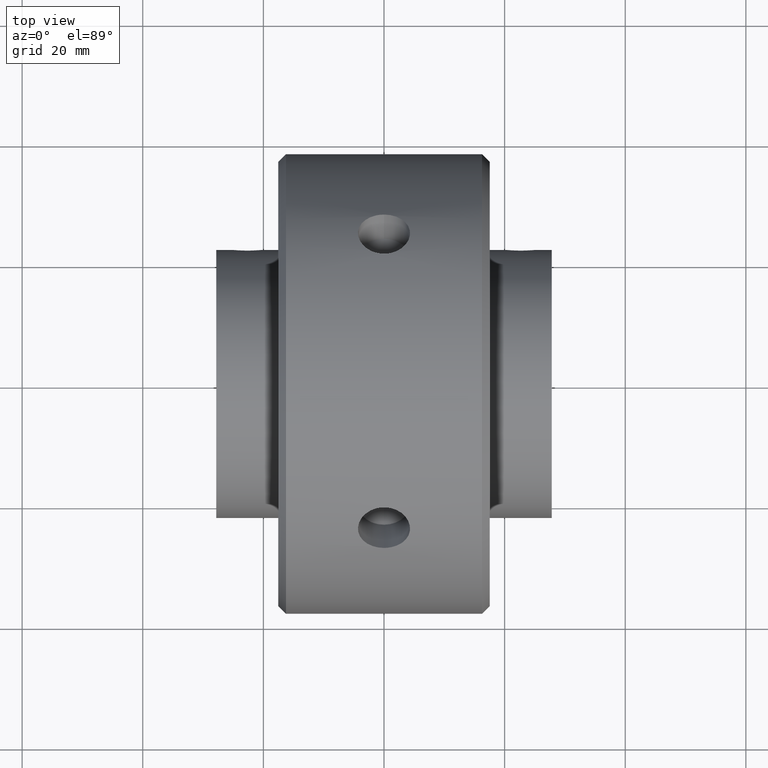
[diagram: clean part render]
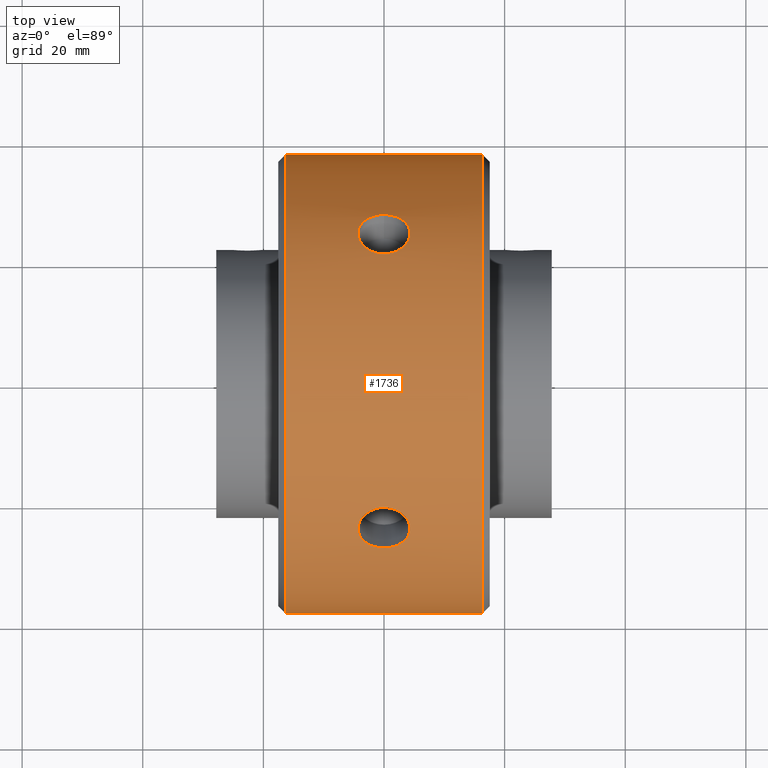
[diagram: same view with one face highlighted and labeled with its STEP entity id]
A machine part, top view. The second image highlights one B-rep face of the part: STEP entity #1736.
In plain terms, the highlighted cylindrical surface (partial cylindrical patch) has radius 38.1 mm, axis along (-1, -0, -0).
Its self-contained STEP definition (entity closure, byte-faithful):
#294 = B_SPLINE_CURVE_WITH_KNOTS ( 'NONE', 3,
 ( #4138, #4134, #4140, #4141, #4142, #4143, #4144, #4145, #4146, #4147, #4148, #4149, #4150, #4151, #4152, #4153, #4154, #4155, #4156, #4157, #4158, #4159, #4160, #4161, #4162, #4163, #4164, #4165, #4166, #4167, #4168, #4169, #4170, #4171 ),
 .UNSPECIFIED., .F., .F.,
 ( 4, 2, 2, 2, 2, 2, 2, 2, 2, 2, 2, 2, 2, 2, 2, 2, 4 ),
 ( 5.705653964717218900E-020, 0.0008444300378255129800, 0.001688860075651025700, 0.002533290113476538600, 0.003377720151302051500, 0.004222150189127564300, 0.005066580226953077200, 0.005911010264778590100, 0.006755440302604102900, 0.007599870340429615800, 0.008444300378255128700, 0.009288730416080642400, 0.01013316045390615600, 0.01097759049173167200, 0.01182202052955718700, 0.01266645056738269900, 0.01351088060520821500 ),
 .UNSPECIFIED. ) ;
#297 = B_SPLINE_CURVE_WITH_KNOTS ( 'NONE', 3,
 ( #4300, #4298, #4297, #4295, #4294, #4293, #4292, #4291, #4289, #4287, #4286, #4285, #4284, #4282, #4281, #4280, #4279, #4277, #4275, #4274, #4273, #4271, #4270, #4269, #4267, #4266, #4265, #4264, #4263, #4262, #4261, #4260, #4259, #4258 ),
 .UNSPECIFIED., .F., .F.,
 ( 4, 2, 2, 2, 2, 2, 2, 2, 2, 2, 2, 2, 2, 2, 2, 2, 4 ),
 ( 1.511320389129148700E-018, 0.0008444300378255147100, 0.001688860075651027500, 0.002533290113476539900, 0.003377720151302052800, 0.004222150189127566100, 0.005066580226953078900, 0.005911010264778592700, 0.006755440302604105500, 0.007599870340429618400, 0.008444300378255132100, 0.009288730416080644100, 0.01013316045390615800, 0.01097759049173167200, 0.01182202052955718500, 0.01266645056738269700, 0.01351088060520820900 ),
 .UNSPECIFIED. ) ;
#320 = B_SPLINE_CURVE_WITH_KNOTS ( 'NONE', 3,
 ( #673, #435, #427, #424, #423, #422, #413, #409, #408, #406, #402, #399, #392, #391, #380, #379, #371, #353, #341, #340, #338, #334, #333, #770, #846, #845, #810, #827, #839, #375, #357, #370, #358, #356 ),
 .UNSPECIFIED., .F., .F.,
 ( 4, 2, 2, 2, 2, 2, 2, 2, 2, 2, 2, 2, 2, 2, 2, 2, 4 ),
 ( 0.01351088060520821500, 0.01435511040321369200, 0.01519934020121916800, 0.01604356999922464500, 0.01688779979723012400, 0.01773202959523560000, 0.01857625939324107600, 0.01942048919124655600, 0.02026471898925203200, 0.02110894878725750800, 0.02195317858526298800, 0.02279740838326846400, 0.02364163818127394000, 0.02448586797927941600, 0.02533009777728488900, 0.02617432757529036100, 0.02701855737329583700 ),
 .UNSPECIFIED. ) ;
#323 = B_SPLINE_CURVE_WITH_KNOTS ( 'NONE', 3,
 ( #651, #738, #773, #742, #780, #764, #581, #582, #593, #597, #602, #603, #610, #613, #614, #615, #617, #622, #624, #627, #628, #634, #569, #560, #540, #533, #531, #527, #515, #505, #496, #492, #521, #490 ),
 .UNSPECIFIED., .F., .F.,
 ( 4, 2, 2, 2, 2, 2, 2, 2, 2, 2, 2, 2, 2, 2, 2, 2, 4 ),
 ( 0.01351088060520820900, 0.01435511040321368200, 0.01519934020121915600, 0.01604356999922462700, 0.01688779979723010300, 0.01773202959523557900, 0.01857625939324105900, 0.01942048919124653500, 0.02026471898925201100, 0.02110894878725749100, 0.02195317858526296700, 0.02279740838326844300, 0.02364163818127391900, 0.02448586797927939500, 0.02533009777728487100, 0.02617432757529034700, 0.02701855737329582300 ),
 .UNSPECIFIED. ) ;
#333 = CARTESIAN_POINT ( 'NONE',  ( 0.1476067216867924200, 0.8974868172911492100, 1.201916439141598000 ) ) ;
#334 = CARTESIAN_POINT ( 'NONE',  ( 0.1528212273994534200, 0.9053069113668121800, 1.196045809191008900 ) ) ;
#338 = CARTESIAN_POINT ( 'NONE',  ( 0.1613415699801709300, 0.9216534678059389300, 1.183495275332005800 ) ) ;
#340 = CARTESIAN_POINT ( 'NONE',  ( 0.1646052481293322800, 0.9301581724872268800, 1.176827934136172000 ) ) ;
#341 = CARTESIAN_POINT ( 'NONE',  ( 0.1689123109188117600, 0.9471197078634897600, 1.163220732012873300 ) ) ;
#353 = CARTESIAN_POINT ( 'NONE',  ( 0.1700082735530961100, 0.9556706450731863300, 1.156209272230627900 ) ) ;
#355 = DIRECTION ( 'NONE',  ( -1.000000000000000000, -1.224646799147353200E-016, -0.0000000000000000000 ) ) ;
#356 = CARTESIAN_POINT ( 'NONE',  ( -1.243724300761957700E-016, 0.8277416593588534700, 1.250937146847055600 ) ) ;
#357 = CARTESIAN_POINT ( 'NONE',  ( 0.04433006185405405400, 0.8323521704360437000, 1.247876097742317300 ) ) ;
#358 = CARTESIAN_POINT ( 'NONE',  ( 0.01123935745672645000, 0.8277416593588534700, 1.250937146847055400 ) ) ;
#363 = CARTESIAN_POINT ( 'NONE',  ( -1.094999999999999800, -1.500000000000000200, 0.0000000000000000000 ) ) ;
#370 = CARTESIAN_POINT ( 'NONE',  ( 0.02235268887295561300, 0.8286689086551207700, 1.250325050046792800 ) ) ;
#371 = CARTESIAN_POINT ( 'NONE',  ( 0.1699916332427355000, 0.9728850300461493500, 1.141762226279526800 ) ) ;
#375 = CARTESIAN_POINT ( 'NONE',  ( 0.05503231937393291600, 0.8350930202824602400, 1.246048915120760300 ) ) ;
#379 = CARTESIAN_POINT ( 'NONE',  ( 0.1688803392431026100, 0.9812659551701992100, 1.134563900437338000 ) ) ;
#380 = CARTESIAN_POINT ( 'NONE',  ( 0.1645428440192832900, 0.9976030418631681700, 1.120225999438070600 ) ) ;
#391 = CARTESIAN_POINT ( 'NONE',  ( 0.1612632085676381500, 1.005642738819523700, 1.113008850941448600 ) ) ;
#392 = CARTESIAN_POINT ( 'NONE',  ( 0.1527152563813462000, 1.020827558993616700, 1.099098319175119100 ) ) ;
#399 = CARTESIAN_POINT ( 'NONE',  ( 0.1474882610413314200, 1.027959046131840000, 1.092421946412238000 ) ) ;
#402 = CARTESIAN_POINT ( 'NONE',  ( 0.1351460985212975300, 1.041349436308403900, 1.079665161532757700 ) ) ;
#406 = CARTESIAN_POINT ( 'NONE',  ( 0.1279665656758276500, 1.047630638470060000, 1.073560313116070700 ) ) ;
#408 = CARTESIAN_POINT ( 'NONE',  ( 0.1122858667771305400, 1.058816587041419000, 1.062529592794959200 ) ) ;
#409 = CARTESIAN_POINT ( 'NONE',  ( 0.1037305745992962400, 1.063797170240365200, 1.057532244388617000 ) ) ;
#413 = CARTESIAN_POINT ( 'NONE',  ( 0.08515110155744039200, 1.072550991801668500, 1.048653058603412000 ) ) ;
#422 = CARTESIAN_POINT ( 'NONE',  ( 0.07526253154982991100, 1.076244887863493100, 1.044851702155675800 ) ) ;
#423 = CARTESIAN_POINT ( 'NONE',  ( 0.05480325736628589200, 1.082160700342706700, 1.038723426511454400 ) ) ;
#424 = CARTESIAN_POINT ( 'NONE',  ( 0.04407591128160625500, 1.084428103103567900, 1.036349599973919200 ) ) ;
#427 = CARTESIAN_POINT ( 'NONE',  ( 0.02213202630165997700, 1.087452150440518800, 1.033175989204741400 ) ) ;
#435 = CARTESIAN_POINT ( 'NONE',  ( 0.01109688509565855000, 1.088196770019304000, 1.032389359553630400 ) ) ;
#460 = DIRECTION ( 'NONE',  ( -1.000000000000000000, -1.224646799147353200E-016, -0.0000000000000000000 ) ) ;
#488 = CARTESIAN_POINT ( 'NONE',  ( -1.095000000000000000, 1.500000000000000200, 1.836970198721030200E-016 ) ) ;
#490 = CARTESIAN_POINT ( 'NONE',  ( 1.577053196130699700E-016, -1.088196770019288700, 1.032389359553645500 ) ) ;
#492 = CARTESIAN_POINT ( 'NONE',  ( 0.02235268887295591800, -1.087432957194256500, 1.033196232355664000 ) ) ;
#496 = CARTESIAN_POINT ( 'NONE',  ( 0.04433006185405437300, -1.084381618281923900, 1.036398281009024000 ) ) ;
#505 = CARTESIAN_POINT ( 'NONE',  ( 0.05503231937393324200, -1.082106251088957200, 1.038780204255120400 ) ) ;
#515 = CARTESIAN_POINT ( 'NONE',  ( 0.07547427048312969900, -1.076171622441151900, 1.044927217776666400 ) ) ;
#521 = CARTESIAN_POINT ( 'NONE',  ( 0.01123935745672669700, -1.088196770019288900, 1.032389359553646000 ) ) ;
#527 = CARTESIAN_POINT ( 'NONE',  ( 0.08535137148608908100, -1.072469812729506300, 1.048736163200477500 ) ) ;
#531 = CARTESIAN_POINT ( 'NONE',  ( 0.1039169857258415600, -1.063695885146095600, 1.057634201008923900 ) ) ;
#533 = CARTESIAN_POINT ( 'NONE',  ( 0.1124624967062962500, -1.058706306806115300, 1.062639546908968700 ) ) ;
#540 = CARTESIAN_POINT ( 'NONE',  ( 0.1281194297771001700, -1.047505537473169900, 1.073682448254132500 ) ) ;
#560 = CARTESIAN_POINT ( 'NONE',  ( 0.1352863276384842200, -1.041217711826497800, 1.079792290428583000 ) ) ;
#569 = CARTESIAN_POINT ( 'NONE',  ( 0.1476067216867927900, -1.027809677436773300, 1.092562575259435900 ) ) ;
#581 = CARTESIAN_POINT ( 'NONE',  ( 0.08515110155744068400, -0.8464751371513911100, 1.238353224858548500 ) ) ;
#582 = CARTESIAN_POINT ( 'NONE',  ( 0.1037305745992964700, -0.8567395133148385500, 1.231274247947259400 ) ) ;
#593 = CARTESIAN_POINT ( 'NONE',  ( 0.1122858667771307600, -0.8625258099661227100, 1.227237111442342400 ) ) ;
#597 = CARTESIAN_POINT ( 'NONE',  ( 0.1279665656758279300, -0.8753313684445559500, 1.218136567046587300 ) ) ;
#602 = CARTESIAN_POINT ( 'NONE',  ( 0.1351460985212978300, -0.8824341898052021600, 1.213010886262041000 ) ) ;
#603 = CARTESIAN_POINT ( 'NONE',  ( 0.1474882610413317000, -0.8973223873104329000, 1.202039118647513400 ) ) ;
#610 = CARTESIAN_POINT ( 'NONE',  ( 0.1527152563813463400, -0.9051357007149248800, 1.196175314786983100 ) ) ;
#613 = CARTESIAN_POINT ( 'NONE',  ( 0.1612632085676382900, -0.9214717165983601400, 1.183636724643041500 ) ) ;
#614 = CARTESIAN_POINT ( 'NONE',  ( 0.1645428440192834300, -0.9299752991179390800, 1.176972413432943800 ) ) ;
#615 = CARTESIAN_POINT ( 'NONE',  ( 0.1688803392431028100, -0.9469322805165604200, 1.163373274176167500 ) ) ;
#617 = CARTESIAN_POINT ( 'NONE',  ( 0.1699916332427356700, -0.9554765799896103300, 1.156369650301337200 ) ) ;
#622 = CARTESIAN_POINT ( 'NONE',  ( 0.1700082735530964500, -0.9726933894305900300, 1.141925493718705600 ) ) ;
#624 = CARTESIAN_POINT ( 'NONE',  ( 0.1689123109188119800, -0.9810831840478865300, 1.134721991673047100 ) ) ;
#627 = CARTESIAN_POINT ( 'NONE',  ( 0.1646052481293325800, -0.9974290019042360000, 1.120381005983368500 ) ) ;
#628 = CARTESIAN_POINT ( 'NONE',  ( 0.1613415699801711800, -1.005471877675372600, 1.113163278524697400 ) ) ;
#634 = CARTESIAN_POINT ( 'NONE',  ( 0.1528212273994537000, -1.020670290460944800, 1.099244440341756900 ) ) ;
#651 = CARTESIAN_POINT ( 'NONE',  ( 1.349146648968905600E-016, -0.8277416593588351500, 1.250937146847067600 ) ) ;
#673 = CARTESIAN_POINT ( 'NONE',  ( -1.012416717233698200E-016, 1.088196770019304000, 1.032389359553630200 ) ) ;
#738 = CARTESIAN_POINT ( 'NONE',  ( 0.01109688509565880600, -0.8277416593588351500, 1.250937146847068200 ) ) ;
#742 = CARTESIAN_POINT ( 'NONE',  ( 0.04407591128160653900, -0.8322961569706790500, 1.247913422982035900 ) ) ;
#764 = CARTESIAN_POINT ( 'NONE',  ( 0.07526253154983024400, -0.8420900935300701400, 1.241330903719243300 ) ) ;
#770 = CARTESIAN_POINT ( 'NONE',  ( 0.1352863276384838600, 0.8825822610436802100, 1.212903238672088200 ) ) ;
#773 = CARTESIAN_POINT ( 'NONE',  ( 0.02213202630166024400, -0.8286456401709095800, 1.250340436518249100 ) ) ;
#780 = CARTESIAN_POINT ( 'NONE',  ( 0.05480325736628620400, -0.8350276501066110600, 1.246092677816279500 ) ) ;
#810 = CARTESIAN_POINT ( 'NONE',  ( 0.1039169857258413600, 0.8568575089570326100, 1.231192206182475400 ) ) ;
#827 = CARTESIAN_POINT ( 'NONE',  ( 0.08535137148608888700, 0.8465710758008374600, 1.238287710040737700 ) ) ;
#839 = CARTESIAN_POINT ( 'NONE',  ( 0.07547427048312932400, 0.8421771843061711700, 1.241271864513264800 ) ) ;
#845 = CARTESIAN_POINT ( 'NONE',  ( 0.1124624967062959500, 0.8626532435919681600, 1.227147599943136500 ) ) ;
#846 = CARTESIAN_POINT ( 'NONE',  ( 0.1281194297770998600, 0.8754733716355682600, 1.218034575159093300 ) ) ;
#1024 = CARTESIAN_POINT ( 'NONE',  ( -1.012416717233698200E-016, 1.088196770019304000, 1.032389359553630200 ) ) ;
#1025 = CARTESIAN_POINT ( 'NONE',  ( -1.243724300761957700E-016, 0.8277416593588534700, 1.250937146847055600 ) ) ;
#1029 = CARTESIAN_POINT ( 'NONE',  ( 1.349146648968905600E-016, -0.8277416593588351500, 1.250937146847067600 ) ) ;
#1030 = CARTESIAN_POINT ( 'NONE',  ( 1.577053196130699700E-016, -1.088196770019288700, 1.032389359553645500 ) ) ;
#1078 = CARTESIAN_POINT ( 'NONE',  ( -0.6399999999999990100, -1.500000000000000200, 0.0000000000000000000 ) ) ;
#1079 = CARTESIAN_POINT ( 'NONE',  ( -0.6399999999999993500, 1.500000000000000200, 1.836970198721030200E-016 ) ) ;
#1086 = CARTESIAN_POINT ( 'NONE',  ( 0.6399999999999990100, 1.500000000000000400, 1.836970198721030200E-016 ) ) ;
#1087 = CARTESIAN_POINT ( 'NONE',  ( 0.6399999999999993500, -1.499999999999999800, 0.0000000000000000000 ) ) ;
#1290 = VERTEX_POINT ( 'NONE', #1087 ) ;
#1292 = VERTEX_POINT ( 'NONE', #1086 ) ;
#1297 = VERTEX_POINT ( 'NONE', #1079 ) ;
#1298 = VERTEX_POINT ( 'NONE', #1078 ) ;
#1344 = VERTEX_POINT ( 'NONE', #1030 ) ;
#1345 = VERTEX_POINT ( 'NONE', #1029 ) ;
#1351 = VERTEX_POINT ( 'NONE', #1025 ) ;
#1352 = VERTEX_POINT ( 'NONE', #1024 ) ;
#1736 = ADVANCED_FACE ( 'NONE', ( #2604, #2612, #2614 ), #2608, .T. ) ;
#1769 = EDGE_CURVE ( 'NONE', #1344, #1345, #297, .T. ) ;
#1801 = EDGE_CURVE ( 'NONE', #1297, #1298, #2741, .T. ) ;
#1805 = EDGE_CURVE ( 'NONE', #1290, #1292, #2747, .T. ) ;
#1871 = EDGE_CURVE ( 'NONE', #1345, #1344, #323, .T. ) ;
#1872 = EDGE_CURVE ( 'NONE', #1292, #1297, #3081, .T. ) ;
#1873 = EDGE_CURVE ( 'NONE', #1352, #1351, #320, .T. ) ;
#1874 = EDGE_CURVE ( 'NONE', #1290, #1298, #3082, .T. ) ;
#2604 = FACE_BOUND ( 'NONE', #4845, .T. ) ;
#2608 = CYLINDRICAL_SURFACE ( 'NONE', #2795, 1.500000000000000200 ) ;
#2612 = FACE_BOUND ( 'NONE', #4846, .T. ) ;
#2614 = FACE_OUTER_BOUND ( 'NONE', #4847, .T. ) ;
#2741 = CIRCLE ( 'NONE', #2829, 1.500000000000000200 ) ;
#2747 = CIRCLE ( 'NONE', #2830, 1.500000000000000200 ) ;
#2795 = AXIS2_PLACEMENT_3D ( 'NONE', #4416, #4413, #4414 ) ;
#2829 = AXIS2_PLACEMENT_3D ( 'NONE', #4637, #4635, #4634 ) ;
#2830 = AXIS2_PLACEMENT_3D ( 'NONE', #4624, #4622, #4621 ) ;
#3069 = VECTOR ( 'NONE', #460, 39.37007874015748100 ) ;
#3076 = VECTOR ( 'NONE', #355, 39.37007874015748100 ) ;
#3081 = LINE ( 'NONE', #488, #3069 ) ;
#3082 = LINE ( 'NONE', #363, #3076 ) ;
#3396 = EDGE_CURVE ( 'NONE', #1351, #1352, #294, .T. ) ;
#3397 = ORIENTED_EDGE ( 'NONE', *, *, #1872, .T. ) ;
#3398 = ORIENTED_EDGE ( 'NONE', *, *, #1805, .T. ) ;
#4134 = CARTESIAN_POINT ( 'NONE',  ( -0.01124202327937333600, 0.8277416593588535800, 1.250937146847055600 ) ) ;
#4138 = CARTESIAN_POINT ( 'NONE',  ( -1.243724300761957700E-016, 0.8277416593588534700, 1.250937146847055600 ) ) ;
#4140 = CARTESIAN_POINT ( 'NONE',  ( -0.02229434265590308400, 0.8286691981265147400, 1.250324795417764300 ) ) ;
#4141 = CARTESIAN_POINT ( 'NONE',  ( -0.04403565129796667400, 0.8322929233264824100, 1.247915551526132900 ) ) ;
#4142 = CARTESIAN_POINT ( 'NONE',  ( -0.05483801352261913300, 0.8350335131865674900, 1.246088864183919200 ) ) ;
#4143 = CARTESIAN_POINT ( 'NONE',  ( -0.07542267298838889500, 0.8421515665181794600, 1.241289315429262100 ) ) ;
#4144 = CARTESIAN_POINT ( 'NONE',  ( -0.08518421921682252400, 0.8464949354847646200, 1.238339504394027700 ) ) ;
#4145 = CARTESIAN_POINT ( 'NONE',  ( -0.1036581494592581500, 0.8566980024473950200, 1.231302942637126000 ) ) ;
#4146 = CARTESIAN_POINT ( 'NONE',  ( -0.1123977801700089000, 0.8626064002687610100, 1.227180513732191600 ) ) ;
#4147 = CARTESIAN_POINT ( 'NONE',  ( -0.1280655999703287900, 0.8754231938115807400, 1.218070624719833800 ) ) ;
#4148 = CARTESIAN_POINT ( 'NONE',  ( -0.1350993734948625300, 0.8823785023758642400, 1.213051877607532100 ) ) ;
#4149 = CARTESIAN_POINT ( 'NONE',  ( -0.1475268226467861300, 0.8973682277505487000, 1.202005383950534200 ) ) ;
#4150 = CARTESIAN_POINT ( 'NONE',  ( -0.1528017245776704400, 0.9052832468886279300, 1.196063143982736100 ) ) ;
#4151 = CARTESIAN_POINT ( 'NONE',  ( -0.1612812069955196500, 0.9215240361340462100, 1.183595476638154700 ) ) ;
#4152 = CARTESIAN_POINT ( 'NONE',  ( -0.1645483773550228100, 0.9299701090091275800, 1.176977533276948100 ) ) ;
#4153 = CARTESIAN_POINT ( 'NONE',  ( -0.1689156636375923600, 0.9470974513451100300, 1.163239844204425200 ) ) ;
#4154 = CARTESIAN_POINT ( 'NONE',  ( -0.1699959361590594500, 0.9556320443825966300, 1.156239836786171500 ) ) ;
#4155 = CARTESIAN_POINT ( 'NONE',  ( -0.1700040411730479300, 0.9726356756953566900, 1.141973295128571900 ) ) ;
#4156 = CARTESIAN_POINT ( 'NONE',  ( -0.1688962006656790400, 0.9811904680148172400, 1.134629565975310900 ) ) ;
#4157 = CARTESIAN_POINT ( 'NONE',  ( -0.1645509900758506700, 0.9975880186651708800, 1.120239765195003300 ) ) ;
#4158 = CARTESIAN_POINT ( 'NONE',  ( -0.1613370735577598600, 1.005482159983715400, 1.113154011077907700 ) ) ;
#4159 = CARTESIAN_POINT ( 'NONE',  ( -0.1528124723707544600, 1.020683642301079400, 1.099232063198374700 ) ) ;
#4160 = CARTESIAN_POINT ( 'NONE',  ( -0.1474906370191194400, 1.027953132857622100, 1.092427312652431500 ) ) ;
#4161 = CARTESIAN_POINT ( 'NONE',  ( -0.1351856374496398500, 1.041309863476446400, 1.079703128182686100 ) ) ;
#4162 = CARTESIAN_POINT ( 'NONE',  ( -0.1281560951712385800, 1.047485895363704700, 1.073702317334252800 ) ) ;
#4163 = CARTESIAN_POINT ( 'NONE',  ( -0.1122905902323946700, 1.058822642238344200, 1.062524343023847400 ) ) ;
#4164 = CARTESIAN_POINT ( 'NONE',  ( -0.1037109866019631900, 1.063801763021468700, 1.057527317962379600 ) ) ;
#4165 = CARTESIAN_POINT ( 'NONE',  ( -0.08530610699219909300, 1.072482562364333500, 1.048722733933389600 ) ) ;
#4166 = CARTESIAN_POINT ( 'NONE',  ( -0.07536302452062353100, 1.076213834318958000, 1.044883808062596800 ) ) ;
#4167 = CARTESIAN_POINT ( 'NONE',  ( -0.05477602713136779700, 1.082170562829429800, 1.038713272504179400 ) ) ;
#4168 = CARTESIAN_POINT ( 'NONE',  ( -0.04417771839389692700, 1.084405854657885900, 1.036372875255346000 ) ) ;
#4169 = CARTESIAN_POINT ( 'NONE',  ( -0.02237446360282693800, 1.087426830452658900, 1.033202633849245000 ) ) ;
#4170 = CARTESIAN_POINT ( 'NONE',  ( -0.01109951712580010600, 1.088196770019304300, 1.032389359553630200 ) ) ;
#4171 = CARTESIAN_POINT ( 'NONE',  ( -1.012416717233698200E-016, 1.088196770019304000, 1.032389359553630200 ) ) ;
#4197 = ORIENTED_EDGE ( 'NONE', *, *, #1874, .F. ) ;
#4198 = ORIENTED_EDGE ( 'NONE', *, *, #1801, .T. ) ;
#4258 = CARTESIAN_POINT ( 'NONE',  ( 1.349146648968905600E-016, -0.8277416593588351500, 1.250937146847067600 ) ) ;
#4259 = CARTESIAN_POINT ( 'NONE',  ( -0.01109951712579981800, -0.8277416593588351500, 1.250937146847067400 ) ) ;
#4260 = CARTESIAN_POINT ( 'NONE',  ( -0.02237446360282679300, -0.8286762767931431500, 1.250320127991861700 ) ) ;
#4261 = CARTESIAN_POINT ( 'NONE',  ( -0.04417771839389673900, -0.8323229420503305300, 1.247895554250440200 ) ) ;
#4262 = CARTESIAN_POINT ( 'NONE',  ( -0.05477602713136762300, -0.8350159377586752200, 1.246100627244809400 ) ) ;
#4263 = CARTESIAN_POINT ( 'NONE',  ( -0.07536302452062337800, -0.8421271040675425400, 1.241305897080055700 ) ) ;
#4264 = CARTESIAN_POINT ( 'NONE',  ( -0.08530610699219888500, -0.8465556366036382000, 1.238297934012205800 ) ) ;
#4265 = CARTESIAN_POINT ( 'NONE',  ( -0.1037109866019629200, -0.8567338642040164300, 1.231277915488759600 ) ) ;
#4266 = CARTESIAN_POINT ( 'NONE',  ( -0.1122905902323944600, -0.8625195884769189000, 1.227242163034033100 ) ) ;
#4267 = CARTESIAN_POINT ( 'NONE',  ( -0.1281560951712383800, -0.8754963496762300200, 1.218018681686960900 ) ) ;
#4269 = CARTESIAN_POINT ( 'NONE',  ( -0.1351856374496396300, -0.8824784514065616700, 1.212978507469892400 ) ) ;
#4270 = CARTESIAN_POINT ( 'NONE',  ( -0.1474906370191192100, -0.8973286988546712600, 1.202034227047047700 ) ) ;
#4271 = CARTESIAN_POINT ( 'NONE',  ( -0.1528124723707542100, -0.9052924037373406600, 1.196056808918297200 ) ) ;
#4273 = CARTESIAN_POINT ( 'NONE',  ( -0.1613370735577596100, -0.9216425556483832700, 1.183503792153733900 ) ) ;
#4274 = CARTESIAN_POINT ( 'NONE',  ( -0.1645509900758504700, -0.9299914644930479300, 1.176960008869686800 ) ) ;
#4275 = CARTESIAN_POINT ( 'NONE',  ( -0.1688962006656787600, -0.9470100566544308300, 1.163310336541298700 ) ) ;
#4277 = CARTESIAN_POINT ( 'NONE',  ( -0.1700040411730476800, -0.9557277421571777100, 1.156160735924428100 ) ) ;
#4279 = CARTESIAN_POINT ( 'NONE',  ( -0.1699959361590592200, -0.9727301925814341200, 1.141892786938711900 ) ) ;
#4280 = CARTESIAN_POINT ( 'NONE',  ( -0.1689156636375920800, -0.9811058706861618400, 1.134703392078425700 ) ) ;
#4281 = CARTESIAN_POINT ( 'NONE',  ( -0.1645483773550225600, -0.9976089851781744200, 1.120221777230254500 ) ) ;
#4282 = CARTESIAN_POINT ( 'NONE',  ( -0.1612812069955194000, -1.005593032272486200, 1.113053212984945100 ) ) ;
#4284 = CARTESIAN_POINT ( 'NONE',  ( -0.1528017245776701300, -1.020691471191746500, 1.099224145535163500 ) ) ;
#4285 = CARTESIAN_POINT ( 'NONE',  ( -0.1475268226467859300, -1.027917863831819800, 1.092461232464411200 ) ) ;
#4286 = CARTESIAN_POINT ( 'NONE',  ( -0.1350993734948622300, -1.041399474923872900, 1.079617438193044300 ) ) ;
#4287 = CARTESIAN_POINT ( 'NONE',  ( -0.1280655999703284300, -1.047549752647774600, 1.073639292684568400 ) ) ;
#4289 = CARTESIAN_POINT ( 'NONE',  ( -0.1123977801700086200, -1.058746854818468900, 1.062599130660586900 ) ) ;
#4291 = CARTESIAN_POINT ( 'NONE',  ( -0.1036581494592579000, -1.063832637279901400, 1.057496346945128000 ) ) ;
#4292 = CARTESIAN_POINT ( 'NONE',  ( -0.08518421921682221800, -1.072534041837321700, 1.048670173621953700 ) ) ;
#4293 = CARTESIAN_POINT ( 'NONE',  ( -0.07542267298838860300, -1.076193256720724600, 1.044905019500198800 ) ) ;
#4294 = CARTESIAN_POINT ( 'NONE',  ( -0.05483801352261887000, -1.082155926534840600, 1.038728538287742500 ) ) ;
#4295 = CARTESIAN_POINT ( 'NONE',  ( -0.04403565129796648700, -1.084430760826718700, 1.036346785073846600 ) ) ;
#4297 = CARTESIAN_POINT ( 'NONE',  ( -0.02229434265590292400, -1.087432656167434600, 1.033196473213470000 ) ) ;
#4298 = CARTESIAN_POINT ( 'NONE',  ( -0.01124202327937308600, -1.088196770019288900, 1.032389359553646000 ) ) ;
#4300 = CARTESIAN_POINT ( 'NONE',  ( 1.577053196130699700E-016, -1.088196770019288700, 1.032389359553645500 ) ) ;
#4413 = DIRECTION ( 'NONE',  ( -1.000000000000000000, -1.224646799147353200E-016, -0.0000000000000000000 ) ) ;
#4414 = DIRECTION ( 'NONE',  ( 9.106159978880876200E-017, -1.000000000000000000, 0.0000000000000000000 ) ) ;
#4416 = CARTESIAN_POINT ( 'NONE',  ( -1.095000000000000000, 0.0000000000000000000, 0.0000000000000000000 ) ) ;
#4621 = DIRECTION ( 'NONE',  ( 9.106159978880876200E-017, -1.000000000000000000, 0.0000000000000000000 ) ) ;
#4622 = DIRECTION ( 'NONE',  ( -1.000000000000000000, -1.224646799147356700E-016, -0.0000000000000000000 ) ) ;
#4624 = CARTESIAN_POINT ( 'NONE',  ( 0.6399999999999992400, 2.124762196520656700E-016, 0.0000000000000000000 ) ) ;
#4634 = DIRECTION ( 'NONE',  ( -9.106159978880876200E-017, 1.000000000000000000, 0.0000000000000000000 ) ) ;
#4635 = DIRECTION ( 'NONE',  ( 1.000000000000000000, 1.224646799147353900E-016, 0.0000000000000000000 ) ) ;
#4637 = CARTESIAN_POINT ( 'NONE',  ( -0.6399999999999992400, 5.572142936120465700E-017, 0.0000000000000000000 ) ) ;
#4845 = EDGE_LOOP ( 'NONE', ( #4858, #4857 ) ) ;
#4846 = EDGE_LOOP ( 'NONE', ( #4856, #4855 ) ) ;
#4847 = EDGE_LOOP ( 'NONE', ( #3398, #3397, #4198, #4197 ) ) ;
#4855 = ORIENTED_EDGE ( 'NONE', *, *, #1873, .T. ) ;
#4856 = ORIENTED_EDGE ( 'NONE', *, *, #3396, .T. ) ;
#4857 = ORIENTED_EDGE ( 'NONE', *, *, #1871, .T. ) ;
#4858 = ORIENTED_EDGE ( 'NONE', *, *, #1769, .T. ) ;